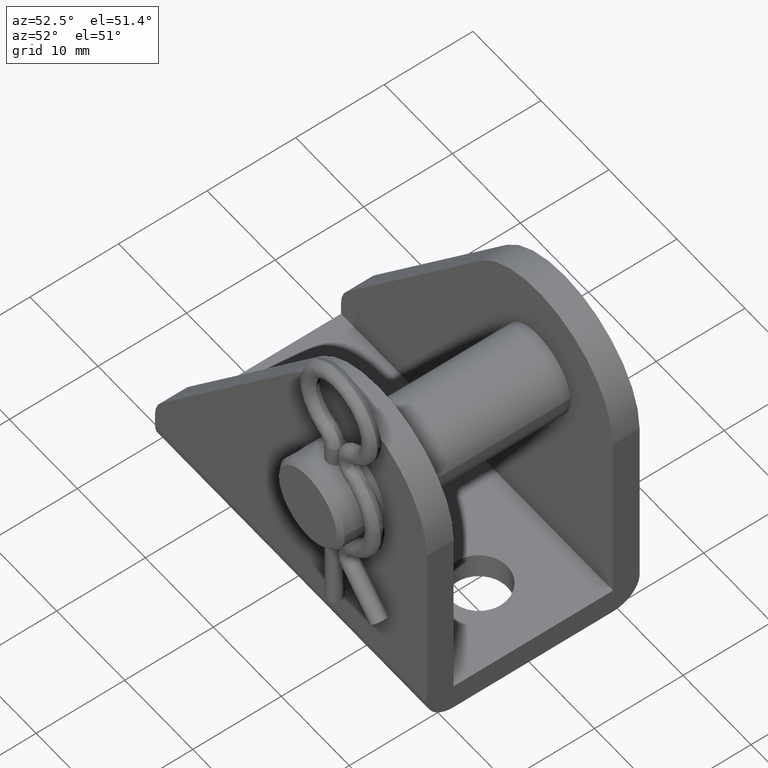
[diagram: clean part render]
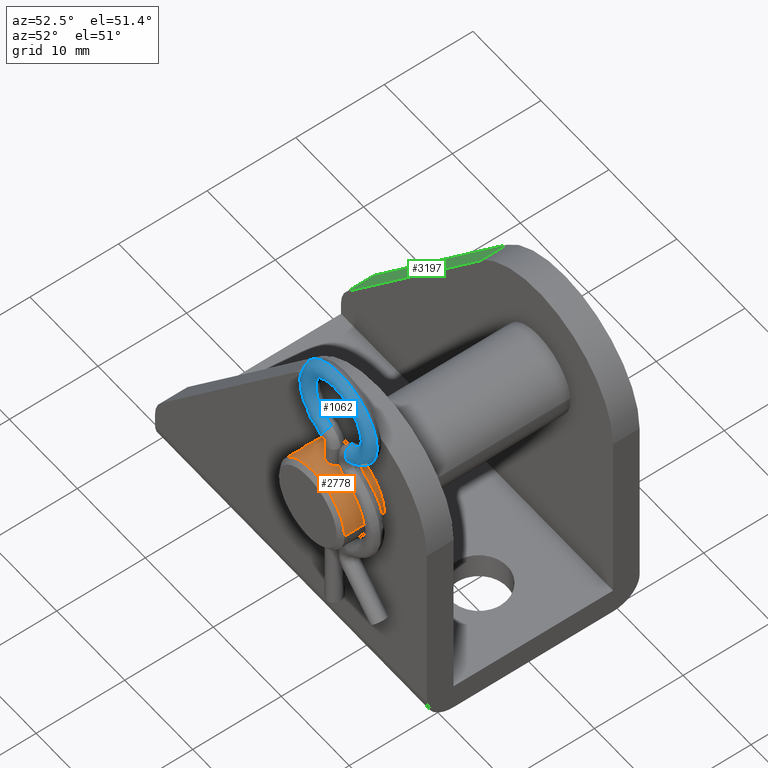
[diagram: same view with three faces highlighted in distinct colors, each labeled with its STEP entity id]
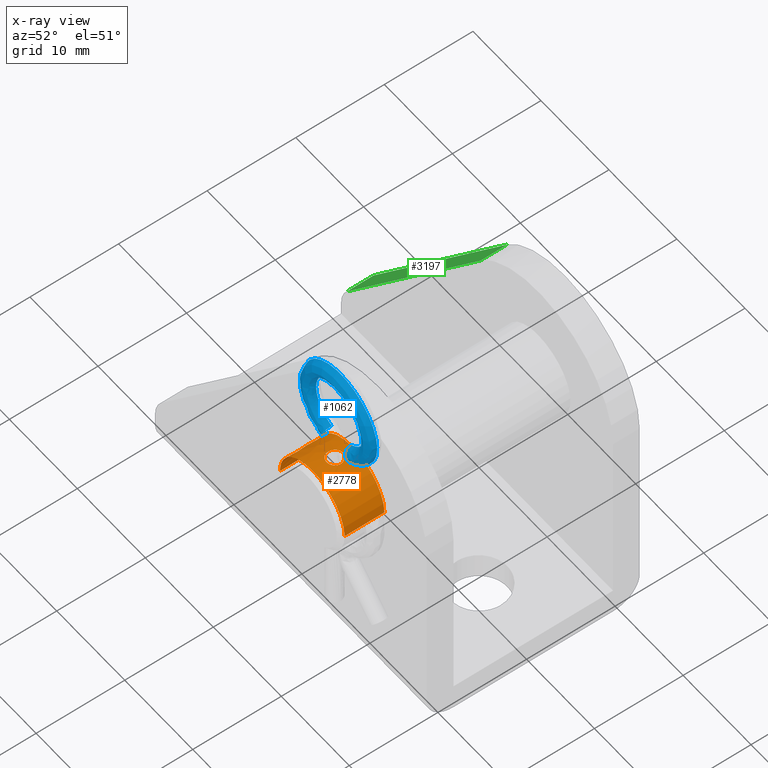
[diagram: x-ray of the same camera — body ghosted, the three highlighted faces saturated]
A machine part, auxiliary view with three faces highlighted in distinct colors.
The next image is the same camera in x-ray (body ghosted, the three faces saturated) — at least one of them is partly hidden behind the body in this view.
Their STEP definitions:

[orange] entity #2778 — the highlighted face is a freeform B-spline surface patch.
#1859=CARTESIAN_POINT('',(-0.007853883236938,-14.899965884162279,4.749993513448614));
#1860=VERTEX_POINT('',#1859);
#1866=CARTESIAN_POINT('',(0.899999997927702,-14.000061075586149,4.663957547376566));
#1867=VERTEX_POINT('',#1866);
#1868=CARTESIAN_POINT('',(0.899999997927702,-14.000061075586149,4.663957547376566));
#1869=CARTESIAN_POINT('',(0.899995955545158,-14.059629598315540,4.663958327440375));
#1870=CARTESIAN_POINT('',(0.894136550870923,-14.118175704373050,4.665099775604775));
#1871=CARTESIAN_POINT('',(0.876942828222305,-14.204530404148921,4.668351454022768));
#1872=CARTESIAN_POINT('',(0.869800296332006,-14.233069451927280,4.669692029411168));
#1873=CARTESIAN_POINT('',(0.852630597534160,-14.289646306770621,4.672857505775504));
#1874=CARTESIAN_POINT('',(0.842564536075858,-14.317731503398820,4.674688929828016));
#1875=CARTESIAN_POINT('',(0.808682120917892,-14.399382643930480,4.680711439347097));
#1876=CARTESIAN_POINT('',(0.781057503445239,-14.450997671248230,4.685460525292500));
#1877=CARTESIAN_POINT('',(0.732127444749107,-14.524263088022050,4.693267752290276));
#1878=CARTESIAN_POINT('',(0.714468335460218,-14.548095002270850,4.695997668935437));
#1879=CARTESIAN_POINT('',(0.676976772197583,-14.593780742167020,4.701548846813489));
#1880=CARTESIAN_POINT('',(0.657247490641639,-14.615533904753230,4.704355589462923));
#1881=CARTESIAN_POINT('',(0.595186710753661,-14.677626762657329,4.712748230178840));
#1882=CARTESIAN_POINT('',(0.550010657858904,-14.714830980130911,4.718307744605093));
#1883=CARTESIAN_POINT('',(0.476333834001663,-14.764185658719191,4.726120608213343));
#1884=CARTESIAN_POINT('',(0.450877810020686,-14.779469384054890,4.728624067178397));
#1885=CARTESIAN_POINT('',(0.399072275500708,-14.807220306000660,4.733277689630219));
#1886=CARTESIAN_POINT('',(0.346128598358158,-14.832323619169490,4.737604701178562));
#1887=CARTESIAN_POINT('',(0.290925589946964,-14.852191348318479,4.741166392650707));
#1888=CARTESIAN_POINT('',(0.234568726582320,-14.869393633694870,4.744288563536545));
#1889=CARTESIAN_POINT('',(0.205670581194104,-14.876686724455810,4.745634534426051));
#1890=CARTESIAN_POINT('',(0.118394267784975,-14.894149584597640,4.748881224539136));
#1891=CARTESIAN_POINT('',(0.059521980399457,-14.900002838003161,4.750000565721511));
#1892=CARTESIAN_POINT('',(-0.002649997530931,-14.899999715269921,4.749999975045503));
#1893=CARTESIAN_POINT('',(-0.005252915025496,-14.899988387602111,4.749997809925949));
#1894=CARTESIAN_POINT('',(-0.007853883236938,-14.899965884162279,4.749993513448614));
#1895=B_SPLINE_CURVE_WITH_KNOTS('',3,(#1868,#1869,#1870,#1871,#1872,#1873,#1874,#1875,#1876,#1877,#1878,#1879,#1880,#1881,#1882,#1883,#1884,#1885,#1886,#1887,#1888,#1889,#1890,#1891,#1892,#1893,#1894),.UNSPECIFIED.,.F.,.U.,(4,2,2,2,2,2,2,2,2,1,2,2,2,4),(0.500000000000002,0.531250000000002,0.546875000000001,0.562500000000000,0.593749999999999,0.609374999999999,0.624999999999999,0.656250000000000,0.671875000000000,0.687500000000000,0.703125000000000,0.718750000000000,0.750000000000000,0.751366563026191),.UNSPECIFIED.);
#1896=EDGE_CURVE('',#1867,#1860,#1895,.T.);
#1898=CARTESIAN_POINT('',(0.007853883237149,-13.100034115806190,4.749993513449017));
#1899=VERTEX_POINT('',#1898);
#1900=CARTESIAN_POINT('',(0.007853883237149,-13.100034115806190,4.749993513449017));
#1901=CARTESIAN_POINT('',(0.064733325558247,-13.100526223713731,4.749899555660699));
#1902=CARTESIAN_POINT('',(0.120680554800783,-13.106362963582381,4.748786309892292));
#1903=CARTESIAN_POINT('',(0.204521908002979,-13.123055275505720,4.745682308742914));
#1904=CARTESIAN_POINT('',(0.233062518521315,-13.130197914866869,4.744363458004888));
#1905=CARTESIAN_POINT('',(0.289642705987882,-13.147368237238700,4.741245602366443));
#1906=CARTESIAN_POINT('',(0.317730247646158,-13.157435014539480,4.739440083898591));
#1907=CARTESIAN_POINT('',(0.399388225942734,-13.191320367192249,4.733494303708301));
#1908=CARTESIAN_POINT('',(0.451007143156664,-13.218947786151549,4.728795322408661));
#1909=CARTESIAN_POINT('',(0.524276085857467,-13.267881848189701,4.721042019118097));
#1910=CARTESIAN_POINT('',(0.548108473479663,-13.285541951989090,4.718326674590423));
#1911=CARTESIAN_POINT('',(0.593796863949372,-13.323037296489240,4.712794796213078));
#1912=CARTESIAN_POINT('',(0.615550710764221,-13.342768217979000,4.709992945520125));
#1913=CARTESIAN_POINT('',(0.677644081618291,-13.404832785086320,4.701600089185484));
#1914=CARTESIAN_POINT('',(0.714846574601184,-13.450009804666911,4.696020051910350));
#1915=CARTESIAN_POINT('',(0.764197439194766,-13.523685029824509,4.688153129083772));
#1916=CARTESIAN_POINT('',(0.779480067501950,-13.549140600039809,4.685627903095706));
#1917=CARTESIAN_POINT('',(0.807228828503691,-13.600944861963249,4.680927220156598));
#1918=CARTESIAN_POINT('',(0.832330091369884,-13.653887000371880,4.676549447497989));
#1919=CARTESIAN_POINT('',(0.852196233072779,-13.709088466382250,4.672936770361191));
#1920=CARTESIAN_POINT('',(0.869397187639916,-13.765444086631399,4.669767125849441));
#1921=CARTESIAN_POINT('',(0.876689761649207,-13.794341790490790,4.668399099470333));
#1922=CARTESIAN_POINT('',(0.894151497234114,-13.881618920238170,4.665097368914092));
#1923=CARTESIAN_POINT('',(0.900004040309489,-13.940492552944310,4.663956767313274));
#1924=CARTESIAN_POINT('',(0.899999997927702,-14.000061075586149,4.663957547376566));
#1925=B_SPLINE_CURVE_WITH_KNOTS('',3,(#1900,#1901,#1902,#1903,#1904,#1905,#1906,#1907,#1908,#1909,#1910,#1911,#1912,#1913,#1914,#1915,#1916,#1917,#1918,#1919,#1920,#1921,#1922,#1923,#1924),.UNSPECIFIED.,.F.,.U.,(4,2,2,2,2,2,2,2,2,1,2,2,4),(0.251366504418228,0.281250000000004,0.296875000000004,0.312500000000004,0.343750000000004,0.359375000000004,0.375000000000004,0.406250000000003,0.421875000000003,0.437500000000003,0.453125000000003,0.468750000000003,0.500000000000002),.UNSPECIFIED.);
#1926=EDGE_CURVE('',#1899,#1867,#1925,.T.);
#1956=CARTESIAN_POINT('',(-0.899999999999949,-13.999999999990800,4.663957546976721));
#1957=VERTEX_POINT('',#1956);
#1958=CARTESIAN_POINT('',(-0.899999999999949,-13.999999999990800,4.663957546976721));
#1959=CARTESIAN_POINT('',(-0.900000000043302,-13.940428226754641,4.663957546976977));
#1960=CARTESIAN_POINT('',(-0.894143937525705,-13.881878992496880,4.665098352480285));
#1961=CARTESIAN_POINT('',(-0.876954557608298,-13.795519719118580,4.668349248822500));
#1962=CARTESIAN_POINT('',(-0.869813358846706,-13.766979167047230,4.669689593956250));
#1963=CARTESIAN_POINT('',(-0.852646138675388,-13.710399337054280,4.672854667697457));
#1964=CARTESIAN_POINT('',(-0.842581083375639,-13.682312247451909,4.674685945289164));
#1965=CARTESIAN_POINT('',(-0.808701132077629,-13.600655429719779,4.680708146664460));
#1966=CARTESIAN_POINT('',(-0.781077643975272,-13.549036910370329,4.685457162586991));
#1967=CARTESIAN_POINT('',(-0.732148727845637,-13.475766570231819,4.693264430863159));
#1968=CARTESIAN_POINT('',(-0.714489999661071,-13.451933162051290,4.695994373029800));
#1969=CARTESIAN_POINT('',(-0.676998351248392,-13.406243790048549,4.701545739817505));
#1970=CARTESIAN_POINT('',(-0.657268927510818,-13.384488923929441,4.704352595534270));
#1971=CARTESIAN_POINT('',(-0.595207465170725,-13.322391243118570,4.712745613289294));
#1972=CARTESIAN_POINT('',(-0.550030619955500,-13.285184189655091,4.718305429157428));
#1973=CARTESIAN_POINT('',(-0.476352179293125,-13.235825732162100,4.726118762088297));
#1974=CARTESIAN_POINT('',(-0.450895270791686,-13.220540666916641,4.728622407058674));
#1975=CARTESIAN_POINT('',(-0.399088010442195,-13.192787425569550,4.733276367764470));
#1976=CARTESIAN_POINT('',(-0.346142527746595,-13.167681996561210,4.737603799549110));
#1977=CARTESIAN_POINT('',(-0.290937478695858,-13.147812668339901,4.741165669437422));
#1978=CARTESIAN_POINT('',(-0.234578504146185,-13.130608963176980,4.744288086411065));
#1979=CARTESIAN_POINT('',(-0.205679250285759,-13.123315265780080,4.745634166167525));
#1980=CARTESIAN_POINT('',(-0.118399297207890,-13.105850910480120,4.748881128960795));
#1981=CARTESIAN_POINT('',(-0.059524523874898,-13.099997161777351,4.750000565762041));
#1982=CARTESIAN_POINT('',(0.002649998398581,-13.100000284728610,4.749999975044780));
#1983=CARTESIAN_POINT('',(0.005252915458427,-13.100011612387251,4.749997809925372));
#1984=CARTESIAN_POINT('',(0.007853883237149,-13.100034115806190,4.749993513449017));
#1985=B_SPLINE_CURVE_WITH_KNOTS('',3,(#1958,#1959,#1960,#1961,#1962,#1963,#1964,#1965,#1966,#1967,#1968,#1969,#1970,#1971,#1972,#1973,#1974,#1975,#1976,#1977,#1978,#1979,#1980,#1981,#1982,#1983,#1984),.UNSPECIFIED.,.F.,.U.,(4,2,2,2,2,2,2,2,2,1,2,2,2,4),(0.0,0.031250000000001,0.046875000000001,0.062500000000001,0.093750000000002,0.109375000000002,0.125000000000003,0.156250000000003,0.171875000000003,0.187500000000003,0.203125000000003,0.218750000000004,0.250000000000004,0.251366504418228),.UNSPECIFIED.);
#1986=EDGE_CURVE('',#1957,#1899,#1985,.T.);
#1988=CARTESIAN_POINT('',(-0.007853883236938,-14.899965884162279,4.749993513448614));
#1989=CARTESIAN_POINT('',(-0.064730784076458,-14.899473797867930,4.749899559852720));
#1990=CARTESIAN_POINT('',(-0.120675554495355,-14.893637553393640,4.748786409302419));
#1991=CARTESIAN_POINT('',(-0.204513340640628,-14.876946680366981,4.745682670733981));
#1992=CARTESIAN_POINT('',(-0.233052784553717,-14.869804648782001,4.744363929302629));
#1993=CARTESIAN_POINT('',(-0.289630683676954,-14.852635801302540,4.741246329925126));
#1994=CARTESIAN_POINT('',(-0.317717212324616,-14.842569858941079,4.739440952420917));
#1995=CARTESIAN_POINT('',(-0.399372432012672,-14.808687257825220,4.733495614896015));
#1996=CARTESIAN_POINT('',(-0.450989730787291,-14.781062070272760,4.728796968561108));
#1997=CARTESIAN_POINT('',(-0.524256620014000,-14.732132038303121,4.721044177143066));
#1998=CARTESIAN_POINT('',(-0.548088300441104,-14.714473476848260,4.718329016323853));
#1999=CARTESIAN_POINT('',(-0.593776046760830,-14.676980913324529,4.712797417421484));
#2000=CARTESIAN_POINT('',(-0.615529649107859,-14.657251453797960,4.709995697253340));
#2001=CARTESIAN_POINT('',(-0.677622538518769,-14.595191506092540,4.701603191049644));
#2002=CARTESIAN_POINT('',(-0.714825040000554,-14.550017871451050,4.696023333010166));
#2003=CARTESIAN_POINT('',(-0.764176580742331,-14.476348343603661,4.688156529859169));
#2004=CARTESIAN_POINT('',(-0.779459852189495,-14.450894273691031,4.685631267943315));
#2005=CARTESIAN_POINT('',(-0.807209922063615,-14.399093296788550,4.680930482510279));
#2006=CARTESIAN_POINT('',(-0.832312687280838,-14.346154528933241,4.676552551442984));
#2007=CARTESIAN_POINT('',(-0.852180786125896,-14.290956634159320,4.672939589485904));
#2008=CARTESIAN_POINT('',(-0.869383973425122,-14.234604706419260,4.669769588112633));
#2009=CARTESIAN_POINT('',(-0.876677816982263,-14.205708958453910,4.668401344505321));
#2010=CARTESIAN_POINT('',(-0.894144050805547,-14.118436179959041,4.665098803891600));
#2011=CARTESIAN_POINT('',(-0.899999999955840,-14.059571773139581,4.663957546976982));
#2012=CARTESIAN_POINT('',(-0.899999999999949,-13.999999999990800,4.663957546976721));
#2013=B_SPLINE_CURVE_WITH_KNOTS('',3,(#1988,#1989,#1990,#1991,#1992,#1993,#1994,#1995,#1996,#1997,#1998,#1999,#2000,#2001,#2002,#2003,#2004,#2005,#2006,#2007,#2008,#2009,#2010,#2011,#2012),.UNSPECIFIED.,.F.,.U.,(4,2,2,2,2,2,2,2,2,1,2,2,4),(0.751366563026191,0.781250000000000,0.796875000000000,0.812500000000000,0.843750000000000,0.859375000000000,0.875000000000000,0.906249999999999,0.921874999999999,0.937499999999999,0.953125000000000,0.968750000000000,1.0),.UNSPECIFIED.);
#2014=EDGE_CURVE('',#1860,#1957,#2013,.T.);
#2245=CARTESIAN_POINT('',(-4.735357335232689,-16.499999999998760,0.372680704710280));
#2246=VERTEX_POINT('',#2245);
#2252=CARTESIAN_POINT('',(-4.749871119677408,-16.499999999999151,-0.034990662413688));
#2253=VERTEX_POINT('',#2252);
#2254=CARTESIAN_POINT('',(-4.735357335232689,-16.499999999998760,0.372680704710280));
#2255=CARTESIAN_POINT('',(-4.746030236892252,-16.499999999998860,0.237081488204729));
#2256=CARTESIAN_POINT('',(-4.750873826950010,-16.499999999999051,0.101024267624586));
#2257=CARTESIAN_POINT('',(-4.749871119677408,-16.499999999999151,-0.034990662413688));
#2258=B_SPLINE_CURVE_WITH_KNOTS('',3,(#2254,#2255,#2256,#2257),.UNSPECIFIED.,.F.,.U.,(4,4),(4.005327E-009,0.408057066938083),.UNSPECIFIED.);
#2259=EDGE_CURVE('',#2246,#2253,#2258,.T.);
#2295=CARTESIAN_POINT('',(4.749871119677238,-16.499999999999151,0.034990662413687));
#2296=VERTEX_POINT('',#2295);
#2304=CARTESIAN_POINT('',(-8.526513E-014,-16.499999999999151,4.750000000000090));
#2305=VERTEX_POINT('',#2304);
#2306=CARTESIAN_POINT('',(4.749871119677238,-16.499999999999151,0.034990662413687));
#2307=CARTESIAN_POINT('',(4.715137271989160,-16.499999999999140,4.750000000000089));
#2308=CARTESIAN_POINT('',(-8.526513E-014,-16.499999999999151,4.750000000000090));
#2316=(BOUNDED_CURVE()B_SPLINE_CURVE(2,(#2306,#2307,#2308),.UNSPECIFIED.,.F.,.U.)B_SPLINE_CURVE_WITH_KNOTS((3,3),(0.251300251534490,0.500000000000000),.UNSPECIFIED.)CURVE()GEOMETRIC_REPRESENTATION_ITEM()RATIONAL_B_SPLINE_CURVE((0.996969166937808,0.708630120615363,1.0))REPRESENTATION_ITEM(''));
#2317=EDGE_CURVE('',#2296,#2305,#2316,.T.);
#2319=CARTESIAN_POINT('',(-8.526513E-014,-16.499999999999151,4.750000000000090));
#2320=CARTESIAN_POINT('',(-4.390854835374075,-16.499999999998948,4.750000000000106));
#2321=CARTESIAN_POINT('',(-4.735357335232689,-16.499999999998753,0.372680704710280));
#2329=(BOUNDED_CURVE()B_SPLINE_CURVE(2,(#2319,#2320,#2321),.UNSPECIFIED.,.F.,.U.)B_SPLINE_CURVE_WITH_KNOTS((3,3),(0.500000000000000,0.736331300632659),.UNSPECIFIED.)CURVE()GEOMETRIC_REPRESENTATION_ITEM()RATIONAL_B_SPLINE_CURVE((1.0,0.723120658605323,0.969723356171590))REPRESENTATION_ITEM(''));
#2330=EDGE_CURVE('',#2305,#2246,#2329,.T.);
#2661=CARTESIAN_POINT('',(-4.749871119677408,-11.999999999999099,-0.034990662413687));
#2662=VERTEX_POINT('',#2661);
#2678=CARTESIAN_POINT('',(4.749871119677238,-11.999999999999099,0.034990662413688));
#2679=VERTEX_POINT('',#2678);
#2695=CARTESIAN_POINT('',(4.749871119677238,-11.999999999999099,0.034990662413688));
#2696=CARTESIAN_POINT('',(4.749871119677238,-16.499999999999151,0.034990662413687));
#2697=QUASI_UNIFORM_CURVE('',1,(#2695,#2696),.UNSPECIFIED.,.F.,.U.);
#2698=EDGE_CURVE('',#2679,#2296,#2697,.T.);
#2703=CARTESIAN_POINT('',(-4.749871119677408,-11.999999999999099,-0.034990662413687));
#2704=CARTESIAN_POINT('',(-4.749871119677408,-16.499999999999151,-0.034990662413688));
#2705=QUASI_UNIFORM_CURVE('',1,(#2703,#2704),.UNSPECIFIED.,.F.,.U.);
#2706=EDGE_CURVE('',#2662,#2253,#2705,.T.);
#2717=CARTESIAN_POINT('',(4.749871119677625,-11.887499999999100,0.034990662361055));
#2718=CARTESIAN_POINT('',(4.714880457316570,-11.887499999999095,4.784861782038766));
#2719=CARTESIAN_POINT('',(-0.034990662361140,-11.887499999999100,4.749871119677710));
#2720=CARTESIAN_POINT('',(-4.784861782038851,-11.887499999999095,4.714880457316655));
#2721=CARTESIAN_POINT('',(-4.749871119677795,-11.887499999999100,-0.034990662361055));
#2722=CARTESIAN_POINT('',(4.749871119677625,-16.615312499999149,0.034990662361055));
#2723=CARTESIAN_POINT('',(4.714880457316570,-16.615312499999153,4.784861782038766));
#2724=CARTESIAN_POINT('',(-0.034990662361140,-16.615312499999149,4.749871119677710));
#2725=CARTESIAN_POINT('',(-4.784861782038851,-16.615312499999153,4.714880457316655));
#2726=CARTESIAN_POINT('',(-4.749871119677795,-16.615312499999149,-0.034990662361055));
#2734=(BOUNDED_SURFACE()B_SPLINE_SURFACE(2,1,((#2717,#2722),(#2718,#2723),(#2719,#2724),(#2720,#2725),(#2721,#2726)),.UNSPECIFIED.,.F.,.F.,.U.)B_SPLINE_SURFACE_WITH_KNOTS((3,2,3),(2,2),(0.0,7.870057685088955,15.740115370177911),(0.0,4.727812500000058),.UNSPECIFIED.)GEOMETRIC_REPRESENTATION_ITEM()RATIONAL_B_SPLINE_SURFACE(((1.0,1.0),(0.707106781186548,0.707106781186548),(1.0,1.0),(0.707106781186548,0.707106781186548),(1.0,1.0)))REPRESENTATION_ITEM('')SURFACE());
#2735=CARTESIAN_POINT('',(-8.526513E-014,-11.999999999999099,4.750000000000090));
#2736=VERTEX_POINT('',#2735);
#2737=CARTESIAN_POINT('',(-8.526513E-014,-11.999999999999099,4.750000000000090));
#2738=CARTESIAN_POINT('',(-4.750000000000176,-11.999999999999099,4.750000000000089));
#2739=CARTESIAN_POINT('',(-4.750000000000175,-11.999999999999099,0.0));
#2740=CARTESIAN_POINT('',(-4.750000000000175,-11.999999999999101,-0.017495568557846));
#2741=CARTESIAN_POINT('',(-4.749871119677409,-11.999999999999096,-0.034990662413687));
#2749=(BOUNDED_CURVE()B_SPLINE_CURVE(2,(#2737,#2738,#2739,#2740,#2741),.UNSPECIFIED.,.F.,.U.)B_SPLINE_CURVE_WITH_KNOTS((3,2,3),(0.0,0.250000000000000,0.251300251534490),.UNSPECIFIED.)CURVE()GEOMETRIC_REPRESENTATION_ITEM()RATIONAL_B_SPLINE_CURVE((1.0,0.707106781186548,1.0,0.998476660571185,0.996969166937808))REPRESENTATION_ITEM(''));
#2750=EDGE_CURVE('',#2736,#2662,#2749,.T.);
#2751=ORIENTED_EDGE('',*,*,#2750,.T.);
#2752=ORIENTED_EDGE('',*,*,#2706,.T.);
#2753=ORIENTED_EDGE('',*,*,#2259,.F.);
#2754=ORIENTED_EDGE('',*,*,#2330,.F.);
#2755=ORIENTED_EDGE('',*,*,#2317,.F.);
#2756=ORIENTED_EDGE('',*,*,#2698,.F.);
#2757=CARTESIAN_POINT('',(4.749871119677239,-11.999999999999098,0.034990662413688));
#2758=CARTESIAN_POINT('',(4.715137271989160,-11.999999999999098,4.750000000000089));
#2759=CARTESIAN_POINT('',(-8.526513E-014,-11.999999999999099,4.750000000000090));
#2767=(BOUNDED_CURVE()B_SPLINE_CURVE(2,(#2757,#2758,#2759),.UNSPECIFIED.,.F.,.U.)B_SPLINE_CURVE_WITH_KNOTS((3,3),(0.751300251534490,1.0),.UNSPECIFIED.)CURVE()GEOMETRIC_REPRESENTATION_ITEM()RATIONAL_B_SPLINE_CURVE((0.996969166937808,0.708630120615363,1.0))REPRESENTATION_ITEM(''));
#2768=EDGE_CURVE('',#2679,#2736,#2767,.T.);
#2769=ORIENTED_EDGE('',*,*,#2768,.T.);
#2770=EDGE_LOOP('',(#2751,#2752,#2753,#2754,#2755,#2756,#2769));
#2771=FACE_OUTER_BOUND('',#2770,.T.);
#2772=ORIENTED_EDGE('',*,*,#1896,.T.);
#2773=ORIENTED_EDGE('',*,*,#2014,.T.);
#2774=ORIENTED_EDGE('',*,*,#1986,.T.);
#2775=ORIENTED_EDGE('',*,*,#1926,.T.);
#2776=EDGE_LOOP('',(#2772,#2773,#2774,#2775));
#2777=FACE_BOUND('',#2776,.T.);
#2778=ADVANCED_FACE('',(#2771,#2777),#2734,.T.);

[blue] entity #1062 — the highlighted face is a freeform B-spline surface patch.
#752=CARTESIAN_POINT('',(2.447668061695980,-13.999999999990800,8.949657930185541));
#753=VERTEX_POINT('',#752);
#772=CARTESIAN_POINT('',(3.221492463192689,-13.999999999990800,7.324482310233591));
#773=VERTEX_POINT('',#772);
#787=CARTESIAN_POINT('',(2.447668061695980,-13.999999999990800,8.949657930185541));
#788=CARTESIAN_POINT('',(2.447652519530626,-14.088357320351911,8.949690571632562));
#789=CARTESIAN_POINT('',(2.458472592168822,-14.257692675999840,8.926966400330038));
#790=CARTESIAN_POINT('',(2.498382646075005,-14.460352080084659,8.843147840881844));
#791=CARTESIAN_POINT('',(2.554175514706737,-14.630934772455550,8.725972407163210));
#792=CARTESIAN_POINT('',(2.617723652429845,-14.755299182288219,8.592509461407943));
#793=CARTESIAN_POINT('',(2.711478969226523,-14.865110583920981,8.395605803673719));
#794=CARTESIAN_POINT('',(2.809135126365489,-14.910330815991470,8.190509653418525));
#795=CARTESIAN_POINT('',(2.904333896516111,-14.891160860056599,7.990574474327608));
#796=CARTESIAN_POINT('',(2.995888444146591,-14.829474518277641,7.798292842452178));
#797=CARTESIAN_POINT('',(3.078542226964234,-14.714244466775771,7.624704477349953));
#798=CARTESIAN_POINT('',(3.143549224088605,-14.551351349169860,7.488177654664496));
#799=CARTESIAN_POINT('',(3.183552088137642,-14.400355018837161,7.404164176600220));
#800=CARTESIAN_POINT('',(3.213316488311959,-14.220879837751420,7.341653382921139));
#801=CARTESIAN_POINT('',(3.221504374908696,-14.080996522380021,7.324457293407548));
#802=CARTESIAN_POINT('',(3.221492463192689,-13.999999999990800,7.324482310233591));
#803=B_SPLINE_CURVE_WITH_KNOTS('',3,(#787,#788,#789,#790,#791,#792,#793,#794,#795,#796,#797,#798,#799,#800,#801,#802),.UNSPECIFIED.,.F.,.U.,(4,1,1,1,1,1,1,1,1,1,1,1,1,4),(0.000000090376233,0.265068404000359,0.508068948743331,0.662705649871518,0.905703855898770,1.082393634963527,1.391661954252341,1.590471976793947,1.745110802461189,2.054358081927434,2.253166064459573,2.407797108230114,2.584517718981847,2.827504340157285),.UNSPECIFIED.);
#804=EDGE_CURVE('',#753,#773,#803,.T.);
#876=CARTESIAN_POINT('',(2.972177068200517,-13.974838936068112,7.213026184139837));
#877=CARTESIAN_POINT('',(3.000538951605809,-13.974838936068124,7.225193823457916));
#878=CARTESIAN_POINT('',(7.154162160302974,-13.974838936068126,9.007155491673540));
#879=CARTESIAN_POINT('',(6.168093657238119,-13.974838936068121,13.386250065781395));
#880=CARTESIAN_POINT('',(5.182025154173261,-13.974838936068126,17.765344639889236));
#881=CARTESIAN_POINT('',(0.696473013582246,-13.974838936068121,17.596163152259180));
#882=CARTESIAN_POINT('',(-3.789079127008769,-13.974838936068126,17.426981664629128));
#883=CARTESIAN_POINT('',(-4.442482905734305,-13.974838936068121,12.986051144606932));
#884=CARTESIAN_POINT('',(-5.095886684459838,-13.974838936068126,8.545120624584740));
#885=CARTESIAN_POINT('',(-0.821557582411298,-13.974838936068119,7.081690676804360));
#886=CARTESIAN_POINT('',(-0.794068628857871,-13.974838936068116,7.072279104390820));
#887=CARTESIAN_POINT('',(2.972177068200518,-13.987346202160978,7.213026184139841));
#888=CARTESIAN_POINT('',(3.000538951605809,-13.987346202160971,7.225193823457919));
#889=CARTESIAN_POINT('',(7.154162160302973,-13.987346202160966,9.007155491673540));
#890=CARTESIAN_POINT('',(6.168093657238120,-13.987346202160978,13.386250065781399));
#891=CARTESIAN_POINT('',(5.182025154173260,-13.987346202160966,17.765344639889232));
#892=CARTESIAN_POINT('',(0.696473013582246,-13.987346202160978,17.596163152259180));
#893=CARTESIAN_POINT('',(-3.789079127008770,-13.987346202160966,17.426981664629114));
#894=CARTESIAN_POINT('',(-4.442482905734307,-13.987346202160978,12.986051144606938));
#895=CARTESIAN_POINT('',(-5.095886684459838,-13.987346202160966,8.545120624584742));
#896=CARTESIAN_POINT('',(-0.821557582411297,-13.987346202160962,7.081690676804358));
#897=CARTESIAN_POINT('',(-0.794068628857871,-13.987346202160973,7.072279104390823));
#898=CARTESIAN_POINT('',(2.972177068200518,-14.899999999990801,7.213026184139839));
#899=CARTESIAN_POINT('',(3.000538951605808,-14.899999999990799,7.225193823457918));
#900=CARTESIAN_POINT('',(7.154162160302974,-14.899999999990801,9.007155491673540));
#901=CARTESIAN_POINT('',(6.168093657238118,-14.899999999990795,13.386250065781393));
#902=CARTESIAN_POINT('',(5.182025154173260,-14.899999999990801,17.765344639889239));
#903=CARTESIAN_POINT('',(0.696473013582246,-14.899999999990795,17.596163152259173));
#904=CARTESIAN_POINT('',(-3.789079127008771,-14.899999999990801,17.426981664629121));
#905=CARTESIAN_POINT('',(-4.442482905734305,-14.899999999990795,12.986051144606932));
#906=CARTESIAN_POINT('',(-5.095886684459838,-14.899999999990801,8.545120624584742));
#907=CARTESIAN_POINT('',(-0.821557582411298,-14.899999999990792,7.081690676804362));
#908=CARTESIAN_POINT('',(-0.794068628857871,-14.899999999990802,7.072279104390821));
#909=CARTESIAN_POINT('',(2.626814223500414,-14.899999999990801,8.044188486783199));
#910=CARTESIAN_POINT('',(2.650449126338158,-14.899999999990802,8.054328186214935));
#911=CARTESIAN_POINT('',(6.111801800252460,-14.899999999990795,9.539296243061283));
#912=CARTESIAN_POINT('',(5.290078047698414,-14.899999999990801,13.188541721484491));
#913=CARTESIAN_POINT('',(4.468354295144366,-14.899999999990795,16.837787199907702));
#914=CARTESIAN_POINT('',(0.730394177985187,-14.899999999990801,16.696802626882651));
#915=CARTESIAN_POINT('',(-3.007565939173994,-14.899999999990795,16.555818053857607));
#916=CARTESIAN_POINT('',(-3.552069088111939,-14.899999999990801,12.855042620505779));
#917=CARTESIAN_POINT('',(-4.096572237049884,-14.899999999990795,9.154267187153952));
#918=CARTESIAN_POINT('',(-0.534631318676100,-14.899999999990802,7.934742230670304));
#919=CARTESIAN_POINT('',(-0.511723857381578,-14.899999999990808,7.926899253659022));
#920=CARTESIAN_POINT('',(2.281451378800309,-14.899999999990801,8.875350789426562));
#921=CARTESIAN_POINT('',(2.300359301070503,-14.899999999990799,8.883462548971947));
#922=CARTESIAN_POINT('',(5.069441440201946,-14.899999999990801,10.071436994449027));
#923=CARTESIAN_POINT('',(4.412062438158711,-14.899999999990795,12.990833377187592));
#924=CARTESIAN_POINT('',(3.754683436115471,-14.899999999990801,15.910229759926160));
#925=CARTESIAN_POINT('',(0.764315342388128,-14.899999999990795,15.797442101506116));
#926=CARTESIAN_POINT('',(-2.226052751339216,-14.899999999990801,15.684654443086082));
#927=CARTESIAN_POINT('',(-2.661655270489574,-14.899999999990795,12.724034096404621));
#928=CARTESIAN_POINT('',(-3.097257789639929,-14.899999999990801,9.763413749723162));
#929=CARTESIAN_POINT('',(-0.247705054940901,-14.899999999990792,8.787793784536241));
#930=CARTESIAN_POINT('',(-0.229379085905283,-14.899999999990802,8.781519402927215));
#931=CARTESIAN_POINT('',(2.281451378800310,-13.987346202160968,8.875350789426562));
#932=CARTESIAN_POINT('',(2.300359301070503,-13.987346202160971,8.883462548971945));
#933=CARTESIAN_POINT('',(5.069441440201946,-13.987346202160971,10.071436994449027));
#934=CARTESIAN_POINT('',(4.412062438158710,-13.987346202160968,12.990833377187595));
#935=CARTESIAN_POINT('',(3.754683436115472,-13.987346202160971,15.910229759926157));
#936=CARTESIAN_POINT('',(0.764315342388128,-13.987346202160968,15.797442101506121));
#937=CARTESIAN_POINT('',(-2.226052751339217,-13.987346202160971,15.684654443086087));
#938=CARTESIAN_POINT('',(-2.661655270489574,-13.987346202160968,12.724034096404619));
#939=CARTESIAN_POINT('',(-3.097257789639929,-13.987346202160971,9.763413749723162));
#940=CARTESIAN_POINT('',(-0.247705054940901,-13.987346202160976,8.787793784536246));
#941=CARTESIAN_POINT('',(-0.229379085905283,-13.987346202160973,8.781519402927215));
#942=CARTESIAN_POINT('',(2.281451378800310,-13.974838936068124,8.875350789426562));
#943=CARTESIAN_POINT('',(2.300359301070504,-13.974838936068130,8.883462548971950));
#944=CARTESIAN_POINT('',(5.069441440201946,-13.974838936068119,10.071436994449027));
#945=CARTESIAN_POINT('',(4.412062438158709,-13.974838936068121,12.990833377187586));
#946=CARTESIAN_POINT('',(3.754683436115472,-13.974838936068119,15.910229759926168));
#947=CARTESIAN_POINT('',(0.764315342388127,-13.974838936068121,15.797442101506119));
#948=CARTESIAN_POINT('',(-2.226052751339217,-13.974838936068119,15.684654443086085));
#949=CARTESIAN_POINT('',(-2.661655270489573,-13.974838936068121,12.724034096404624));
#950=CARTESIAN_POINT('',(-3.097257789639929,-13.974838936068119,9.763413749723162));
#951=CARTESIAN_POINT('',(-0.247705054940901,-13.974838936068119,8.787793784536238));
#952=CARTESIAN_POINT('',(-0.229379085905284,-13.974838936068123,8.781519402927216));
#960=(BOUNDED_SURFACE()B_SPLINE_SURFACE(2,2,((#876,#887,#898,#909,#920,#931,#942),(#877,#888,#899,#910,#921,#932,#943),(#878,#889,#900,#911,#922,#933,#944),(#879,#890,#901,#912,#923,#934,#945),(#880,#891,#902,#913,#924,#935,#946),(#881,#892,#903,#914,#925,#936,#947),(#882,#893,#904,#915,#926,#937,#948),(#883,#894,#905,#916,#927,#938,#949),(#884,#895,#906,#917,#928,#939,#950),(#885,#896,#907,#918,#929,#940,#951),(#886,#897,#908,#919,#930,#941,#952)),.UNSPECIFIED.,.F.,.F.,.U.)B_SPLINE_SURFACE_WITH_KNOTS((3,1,2,2,2,1,3),(3,1,2,1,3),(0.0,0.070218787064872,7.875454729142371,15.680690671219869,23.485926613297369,31.291162555374871,31.357247379243560),(0.0,0.029824354643236,1.521042086804786,3.012259818966335,3.042084173609570),.UNSPECIFIED.)GEOMETRIC_REPRESENTATION_ITEM()RATIONAL_B_SPLINE_SURFACE(((1.015920578177660,1.010038367597258,0.710045627996843,1.004156157016857,0.710045627996843,1.010038367597258,1.015920578177659),(1.013818153465100,1.007948115986764,0.708576204591695,1.002078078508428,0.708576204591695,1.007948115986764,1.013818153465099),(0.778018713780996,0.773513962122002,0.543771627513305,0.769009210463007,0.543771627513305,0.773513962122001,0.778018713780996),(1.011715728752540,1.005857864376270,0.707106781186548,1.0,0.707106781186548,1.005857864376270,1.011715728752540),(0.778018713780996,0.773513962122002,0.543771627513305,0.769009210463007,0.543771627513305,0.773513962122001,0.778018713780996),(1.011715728752540,1.005857864376270,0.707106781186548,1.0,0.707106781186548,1.005857864376270,1.011715728752540),(0.778018713780996,0.773513962122002,0.543771627513305,0.769009210463007,0.543771627513305,0.773513962122001,0.778018713780996),(1.011715728752540,1.005857864376270,0.707106781186548,1.0,0.707106781186548,1.005857864376270,1.011715728752540),(0.778018713780996,0.773513962122002,0.543771627513305,0.769009210463007,0.543771627513305,0.773513962122001,0.778018713780996),(1.013694378237020,1.007825057420963,0.708489695802091,1.001955736604905,0.708489695802091,1.007825057420962,1.013694378237020),(1.015673027721500,1.009792250465655,0.709872610417634,1.003911473209810,0.709872610417634,1.009792250465655,1.015673027721499)))REPRESENTATION_ITEM('')SURFACE());
#961=CARTESIAN_POINT('',(-1.051097106170642,-13.999999999990800,7.164801882299320));
#962=VERTEX_POINT('',#961);
#963=CARTESIAN_POINT('',(3.221492463192689,-13.999999999990800,7.324482310233591));
#964=CARTESIAN_POINT('',(3.638190910945620,-13.999999999990800,7.522759504024111));
#965=CARTESIAN_POINT('',(4.240931115784299,-13.999999999990781,7.911527021548599));
#966=CARTESIAN_POINT('',(4.987980773562324,-13.999999999990850,8.636224623571565));
#967=CARTESIAN_POINT('',(5.484022221344266,-13.999999999990751,9.301922613914380));
#968=CARTESIAN_POINT('',(5.893559030807418,-13.999999999990790,10.088275052849550));
#969=CARTESIAN_POINT('',(6.146392642726238,-13.999999999990800,10.837994068992620));
#970=CARTESIAN_POINT('',(6.301330536484850,-13.999999999990800,11.710635321212370));
#971=CARTESIAN_POINT('',(6.316670574702746,-13.999999999990800,12.695643328548860));
#972=CARTESIAN_POINT('',(6.109035050802309,-13.999999999990820,13.759083073459630));
#973=CARTESIAN_POINT('',(5.751725276028492,-13.999999999990781,14.614147200999311));
#974=CARTESIAN_POINT('',(5.365634375788577,-13.999999999990870,15.258236758996260));
#975=CARTESIAN_POINT('',(4.859408591917210,-13.999999999990481,15.914086761446599));
#976=CARTESIAN_POINT('',(4.143081547306674,-13.999999999991010,16.564305041109350));
#977=CARTESIAN_POINT('',(3.295548318044633,-13.999999999990530,17.065538702954399));
#978=CARTESIAN_POINT('',(2.452253536514936,-13.999999999991401,17.396397612868899));
#979=CARTESIAN_POINT('',(1.659817506005312,-13.999999999989660,17.568354322461001));
#980=CARTESIAN_POINT('',(0.736593188565970,-13.999999999991671,17.622684191669869));
#981=CARTESIAN_POINT('',(-0.089689093132429,-13.999999999990751,17.534120558940842));
#982=CARTESIAN_POINT('',(-0.924731573522040,-13.999999999990370,17.300852012220439));
#983=CARTESIAN_POINT('',(-1.720072106388978,-13.999999999991170,16.954065344172541));
#984=CARTESIAN_POINT('',(-2.524410565456954,-13.999999999990671,16.418482751189590));
#985=CARTESIAN_POINT('',(-3.210827204915575,-13.999999999990809,15.739714337691661));
#986=CARTESIAN_POINT('',(-3.718827348069461,-13.999999999990790,15.036315625641681));
#987=CARTESIAN_POINT('',(-4.036841650868108,-13.999999999990809,14.419330655453470));
#988=CARTESIAN_POINT('',(-4.279887490410809,-13.999999999990790,13.770541498580680));
#989=CARTESIAN_POINT('',(-4.422504017652581,-13.999999999990800,13.190103259397819));
#990=CARTESIAN_POINT('',(-4.510963305656779,-13.999999999990781,12.444600849519590));
#991=CARTESIAN_POINT('',(-4.499360172731767,-13.999999999990800,11.692090135187470));
#992=CARTESIAN_POINT('',(-4.351090359722040,-13.999999999990800,10.856765270769790));
#993=CARTESIAN_POINT('',(-4.110826856794786,-13.999999999990809,10.144211607998770));
#994=CARTESIAN_POINT('',(-3.795254793029933,-13.999999999990751,9.505244084591334));
#995=CARTESIAN_POINT('',(-3.382492088494903,-13.999999999991070,8.877351024022948));
#996=CARTESIAN_POINT('',(-2.867083413443807,-13.999999999990450,8.302725709460825));
#997=CARTESIAN_POINT('',(-2.094477761699658,-13.999999999990660,7.664865437848023));
#998=CARTESIAN_POINT('',(-1.481441505332789,-13.999999999990621,7.331409012376417));
#999=CARTESIAN_POINT('',(-1.051097106170642,-13.999999999990800,7.164801882299320));
#1000=B_SPLINE_CURVE_WITH_KNOTS('',3,(#963,#964,#965,#966,#967,#968,#969,#970,#971,#972,#973,#974,#975,#976,#977,#978,#979,#980,#981,#982,#983,#984,#985,#986,#987,#988,#989,#990,#991,#992,#993,#994,#995,#996,#997,#998,#999),.UNSPECIFIED.,.F.,.U.,(4,1,1,1,1,1,1,1,1,1,1,1,1,1,1,1,1,1,1,1,1,1,1,1,1,1,1,1,1,1,1,1,1,1,4),(0.000000053368019,1.384360904424153,2.134238368268559,3.114850376525691,3.864722054904384,4.787646915735007,5.479835204234526,6.518133556065774,7.729418612976691,8.710026071176632,9.286863411533172,9.979055388466886,11.190388029189069,12.170989466636779,12.920871148011980,13.901475855373739,14.593660073779400,15.689609376916360,16.381784558941980,17.189344307640379,18.285321380942069,19.265927798650178,20.073485750382989,20.881035841223859,21.342495779232362,22.150046580133591,22.669160355939020,23.592088464950731,24.399641738298460,25.207205296035450,25.841712878916759,26.533906379061438,27.456823224147730,28.149024737524769,29.533386371645740),.UNSPECIFIED.);
#1001=EDGE_CURVE('',#773,#962,#1000,.T.);
#1002=ORIENTED_EDGE('',*,*,#1001,.T.);
#1003=CARTESIAN_POINT('',(-0.400735463201958,-13.999999999990800,8.843202827874389));
#1004=VERTEX_POINT('',#1003);
#1005=CARTESIAN_POINT('',(-0.400735463201958,-13.999999999990800,8.843202827874389));
#1006=CARTESIAN_POINT('',(-0.400722262117690,-14.088357926580610,8.843236896169387));
#1007=CARTESIAN_POINT('',(-0.409816888419971,-14.257689522130759,8.819766217124242));
#1008=CARTESIAN_POINT('',(-0.445591913663484,-14.473871521911150,8.727440913432247));
#1009=CARTESIAN_POINT('',(-0.490759454116834,-14.630027478284649,8.610876162995652));
#1010=CARTESIAN_POINT('',(-0.539796927823140,-14.744212822365890,8.484324200518884));
#1011=CARTESIAN_POINT('',(-0.604916710176124,-14.846367915194611,8.316268311217025));
#1012=CARTESIAN_POINT('',(-0.693494439792565,-14.911013528597760,8.087674041010098));
#1013=CARTESIAN_POINT('',(-0.790315173697176,-14.894517972975910,7.837806889258784));
#1014=CARTESIAN_POINT('',(-0.883699598150763,-14.802039697665339,7.596807888165562));
#1015=CARTESIAN_POINT('',(-0.957433095879447,-14.650739439151030,7.406522416003313));
#1016=CARTESIAN_POINT('',(-1.005313882532847,-14.471909434078960,7.282955538309121));
#1017=CARTESIAN_POINT('',(-1.040678576348335,-14.265009605391400,7.191689184916208));
#1018=CARTESIAN_POINT('',(-1.051135726056775,-14.110464369212320,7.164702215209195));
#1019=CARTESIAN_POINT('',(-1.051097106170642,-13.999999999990800,7.164801882299320));
#1020=B_SPLINE_CURVE_WITH_KNOTS('',3,(#1005,#1006,#1007,#1008,#1009,#1010,#1011,#1012,#1013,#1014,#1015,#1016,#1017,#1018,#1019),.UNSPECIFIED.,.F.,.U.,(4,1,1,1,1,1,1,1,1,1,1,1,4),(0.000000090371605,0.265068404011018,0.508068948767787,0.706883552544076,0.861522576607303,1.038223306209213,1.325388202505581,1.612565770797506,1.833470121746593,2.142707599734352,2.363617383200094,2.496163226234833,2.827504340313212),.UNSPECIFIED.);
#1021=EDGE_CURVE('',#1004,#962,#1020,.T.);
#1022=ORIENTED_EDGE('',*,*,#1021,.F.);
#1023=CARTESIAN_POINT('',(2.447668061695980,-13.999999999990800,8.949657930185541));
#1024=CARTESIAN_POINT('',(2.760222352063769,-13.999999999990740,9.098320854976700));
#1025=CARTESIAN_POINT('',(3.180197140173564,-13.999999999990850,9.378928980918762));
#1026=CARTESIAN_POINT('',(3.664954084980277,-13.999999999990800,9.875032971009274));
#1027=CARTESIAN_POINT('',(4.005760658504745,-13.999999999990839,10.342707892617151));
#1028=CARTESIAN_POINT('',(4.316076512330699,-13.999999999990649,10.979389326924069));
#1029=CARTESIAN_POINT('',(4.503090615652722,-13.999999999991120,11.744193348523559));
#1030=CARTESIAN_POINT('',(4.510913510175068,-13.999999999990770,12.518087802943800));
#1031=CARTESIAN_POINT('',(4.372776708104696,-13.999999999990690,13.225507532055220));
#1032=CARTESIAN_POINT('',(4.095970251281482,-13.999999999990870,13.919226395286280));
#1033=CARTESIAN_POINT('',(3.688363341108160,-13.999999999990770,14.516676002631460));
#1034=CARTESIAN_POINT('',(3.198592511250146,-13.999999999990809,14.990663628550390));
#1035=CARTESIAN_POINT('',(2.734470637446888,-13.999999999990781,15.314296735039010));
#1036=CARTESIAN_POINT('',(2.272382431686996,-13.999999999990809,15.539780898332261));
#1037=CARTESIAN_POINT('',(1.687430356548470,-13.999999999990800,15.734004149964640));
#1038=CARTESIAN_POINT('',(1.060702164704047,-13.999999999990790,15.821629515269240));
#1039=CARTESIAN_POINT('',(0.457550551462482,-13.999999999990800,15.782846153430521));
#1040=CARTESIAN_POINT('',(-0.058904645092517,-13.999999999990800,15.682341923609460));
#1041=CARTESIAN_POINT('',(-0.545789380571684,-13.999999999990800,15.514977769302050));
#1042=CARTESIAN_POINT('',(-1.099549599842493,-13.999999999990809,15.214843059278110));
#1043=CARTESIAN_POINT('',(-1.544520735913588,-13.999999999990790,14.864055964263089));
#1044=CARTESIAN_POINT('',(-1.979000012635426,-13.999999999990790,14.391080232981640));
#1045=CARTESIAN_POINT('',(-2.320976530312055,-13.999999999990809,13.859975003490490));
#1046=CARTESIAN_POINT('',(-2.589324591992442,-13.999999999990781,13.177151069347071));
#1047=CARTESIAN_POINT('',(-2.698177211668682,-13.999999999990800,12.568024123403751));
#1048=CARTESIAN_POINT('',(-2.705863517414032,-13.999999999990800,11.887519153164691));
#1049=CARTESIAN_POINT('',(-2.599884701767396,-13.999999999990800,11.250949294756319));
#1050=CARTESIAN_POINT('',(-2.322932758051861,-13.999999999990800,10.543826849135570));
#1051=CARTESIAN_POINT('',(-1.981584523175005,-13.999999999990800,10.012317665514720));
#1052=CARTESIAN_POINT('',(-1.556337693403587,-13.999999999990800,9.548306516551881));
#1053=CARTESIAN_POINT('',(-1.063611947138148,-13.999999999990800,9.154625985561047));
#1054=CARTESIAN_POINT('',(-0.639794225138545,-13.999999999990800,8.935791839051388));
#1055=CARTESIAN_POINT('',(-0.400735463201958,-13.999999999990800,8.843202827874389));
#1056=B_SPLINE_CURVE_WITH_KNOTS('',3,(#1023,#1024,#1025,#1026,#1027,#1028,#1029,#1030,#1031,#1032,#1033,#1034,#1035,#1036,#1037,#1038,#1039,#1040,#1041,#1042,#1043,#1044,#1045,#1046,#1047,#1048,#1049,#1050,#1051,#1052,#1053,#1054,#1055),.UNSPECIFIED.,.F.,.U.,(4,1,1,1,1,1,1,1,1,1,1,1,1,1,1,1,1,1,1,1,1,1,1,1,1,1,1,1,1,1,4),(0.000000117691858,1.038266437947257,1.499731561939932,2.076564582848398,2.768759759590775,3.614768723371078,4.422334307149981,5.076024926631805,5.768217736301583,6.652697775326983,7.229523773889184,7.806353970057657,8.344720321775695,8.767737731944999,9.652200300447158,10.228993183886541,10.575082540426520,11.228821051887451,11.767202424692190,12.459393908617640,12.920858772573050,13.689959027403100,14.343702442409850,15.112770920217830,15.535767929583869,16.381787337923679,17.035523820612340,17.804628870236989,18.266087573770360,18.919831694624861,19.688912784252160),.UNSPECIFIED.);
#1057=EDGE_CURVE('',#753,#1004,#1056,.T.);
#1058=ORIENTED_EDGE('',*,*,#1057,.F.);
#1059=ORIENTED_EDGE('',*,*,#804,.T.);
#1060=EDGE_LOOP('',(#1002,#1022,#1058,#1059));
#1061=FACE_OUTER_BOUND('',#1060,.T.);
#1062=ADVANCED_FACE('',(#1061),#960,.T.);

[green] entity #3197 — the highlighted face is a freeform B-spline surface patch.
#2891=CARTESIAN_POINT('',(-28.092181284705649,12.000000000000840,-16.893695703366198));
#2892=VERTEX_POINT('',#2891);
#2906=CARTESIAN_POINT('',(-8.503498532940530,12.000000000000901,6.977858747515390));
#2907=VERTEX_POINT('',#2906);
#2908=CARTESIAN_POINT('',(-8.503498532940530,12.000000000000901,6.977858747515390));
#2909=CARTESIAN_POINT('',(-28.092181284705649,12.000000000000840,-16.893695703366198));
#2910=QUASI_UNIFORM_CURVE('',1,(#2908,#2909),.UNSPECIFIED.,.F.,.U.);
#2911=EDGE_CURVE('',#2907,#2892,#2910,.T.);
#3108=CARTESIAN_POINT('',(-28.092181284705649,9.000000000000910,-16.893695703366198));
#3109=VERTEX_POINT('',#3108);
#3123=CARTESIAN_POINT('',(-28.092181284705649,12.000000000000840,-16.893695703366198));
#3124=CARTESIAN_POINT('',(-28.092181284705649,9.000000000000910,-16.893695703366198));
#3125=QUASI_UNIFORM_CURVE('',1,(#3123,#3124),.UNSPECIFIED.,.F.,.U.);
#3126=EDGE_CURVE('',#2892,#3109,#3125,.T.);
#3176=CARTESIAN_POINT('',(-29.070635950189640,8.850150005815493,-18.086079801920029));
#3177=CARTESIAN_POINT('',(-7.525043342047017,8.850150005815493,8.170243486354121));
#3178=CARTESIAN_POINT('',(-29.070635950189640,12.149850074652591,-18.086079801920029));
#3179=CARTESIAN_POINT('',(-7.525043342047017,12.149850074652591,8.170243486354121));
#3180=B_SPLINE_SURFACE_WITH_KNOTS('',1,1,((#3176,#3178),(#3177,#3179)),.UNSPECIFIED.,.F.,.F.,.U.,(2,2),(2,2),(0.0,33.964791673944042),(0.0,3.299700068837096),.UNSPECIFIED.);
#3181=ORIENTED_EDGE('',*,*,#2911,.T.);
#3182=ORIENTED_EDGE('',*,*,#3126,.T.);
#3183=CARTESIAN_POINT('',(-8.503498532940530,9.000000000001009,6.977858747515390));
#3184=VERTEX_POINT('',#3183);
#3185=CARTESIAN_POINT('',(-8.503498532940530,9.000000000001009,6.977858747515390));
#3186=CARTESIAN_POINT('',(-28.092181284705649,9.000000000000910,-16.893695703366198));
#3187=QUASI_UNIFORM_CURVE('',1,(#3185,#3186),.UNSPECIFIED.,.F.,.U.);
#3188=EDGE_CURVE('',#3184,#3109,#3187,.T.);
#3189=ORIENTED_EDGE('',*,*,#3188,.F.);
#3190=CARTESIAN_POINT('',(-8.503498532940530,12.000000000000901,6.977858747515390));
#3191=CARTESIAN_POINT('',(-8.503498532940530,9.000000000001009,6.977858747515390));
#3192=QUASI_UNIFORM_CURVE('',1,(#3190,#3191),.UNSPECIFIED.,.F.,.U.);
#3193=EDGE_CURVE('',#2907,#3184,#3192,.T.);
#3194=ORIENTED_EDGE('',*,*,#3193,.F.);
#3195=EDGE_LOOP('',(#3181,#3182,#3189,#3194));
#3196=FACE_OUTER_BOUND('',#3195,.T.);
#3197=ADVANCED_FACE('',(#3196),#3180,.T.);